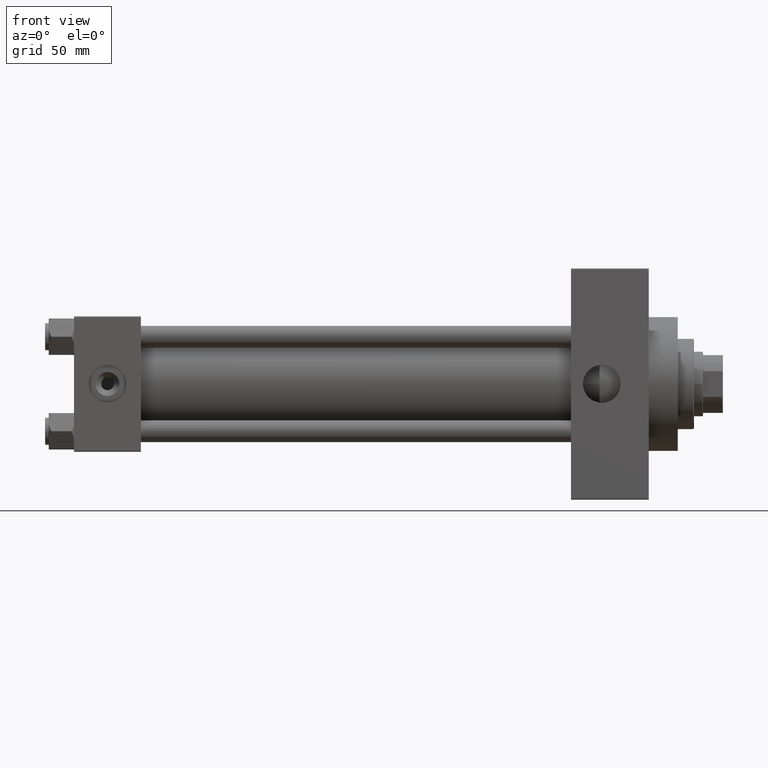
[diagram: clean part render]
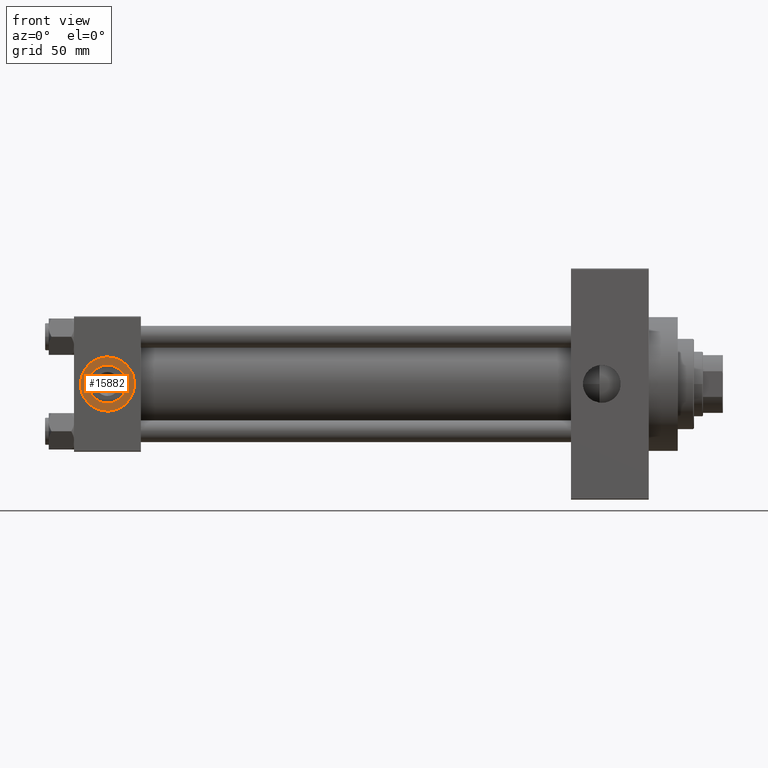
[diagram: same view with one face highlighted and labeled with its STEP entity id]
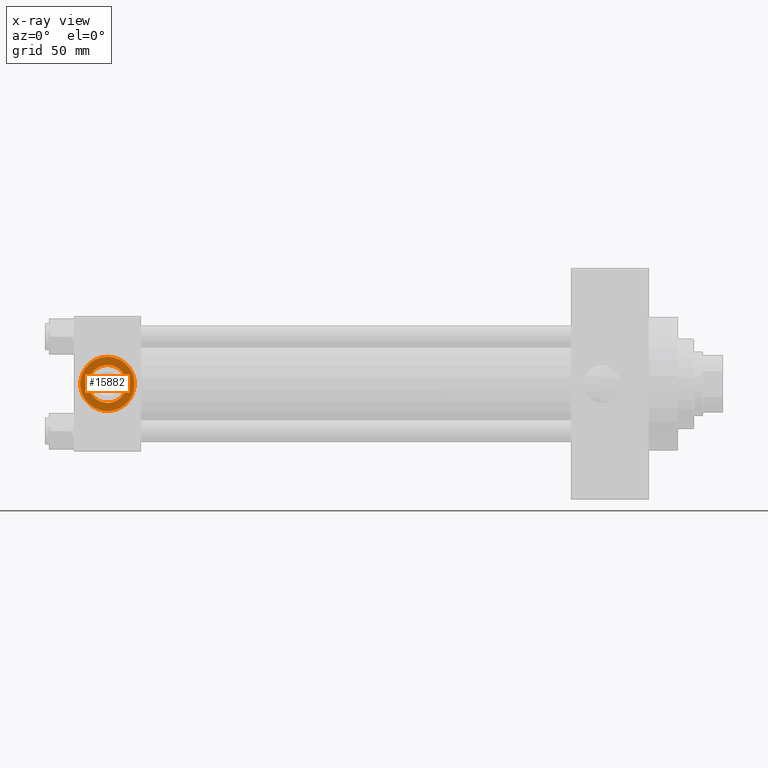
[diagram: x-ray of the same camera — body ghosted, the highlighted face saturated]
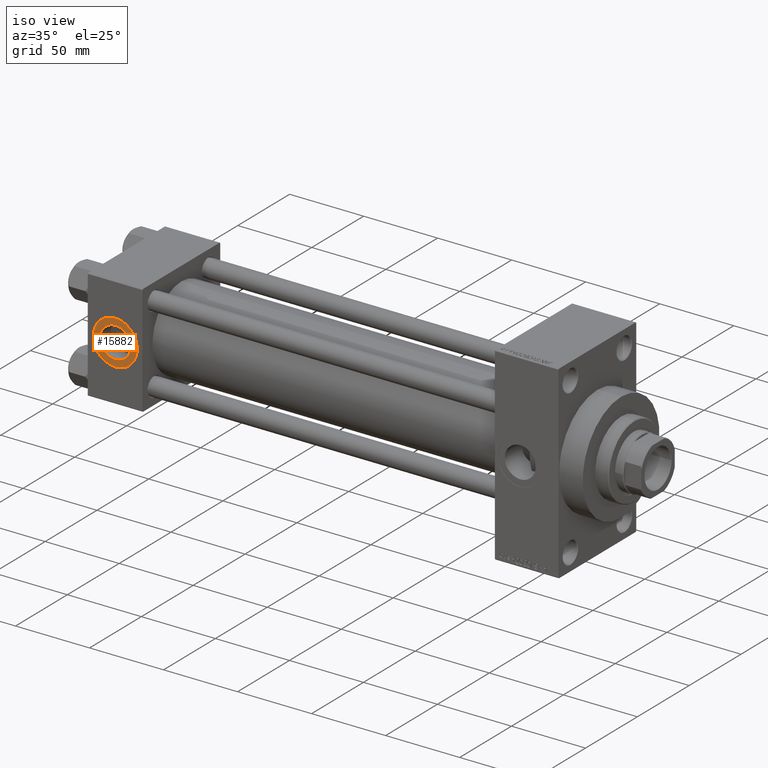
[diagram: same view with one face highlighted and labeled with its STEP entity id]
A machine part, front view. The second image highlights one B-rep face of the part: STEP entity #15882.
The next image is the same camera in x-ray: the body ghosted, the highlighted face saturated — about 0% of this face is hidden behind the body in this view.
A second angle (iso view) of the same face is appended — the face is thin or edge-on in the first view.
In plain terms, the highlighted planar face has unit normal (0, -1, -0).
Its self-contained STEP definition (entity closure, byte-faithful):
#325 = AXIS2_PLACEMENT_3D ( 'NONE', #42826, #11938, #34344 ) ;
#1508 = CARTESIAN_POINT ( 'NONE',  ( 18.50000000000000355, -37.30000000000000426, 14.99999999999999822 ) ) ;
#1928 = CIRCLE ( 'NONE', #325, 10.48000000000000043 ) ;
#2330 = EDGE_LOOP ( 'NONE', ( #24407, #2623 ) ) ;
#2623 = ORIENTED_EDGE ( 'NONE', *, *, #13398, .T. ) ;
#4382 = CIRCLE ( 'NONE', #32241, 15.00000000000000178 ) ;
#6441 = VERTEX_POINT ( 'NONE', #34478 ) ;
#6681 = DIRECTION ( 'NONE',  ( 0.000000000000000000, 8.673617379884036705E-17, -1.000000000000000000 ) ) ;
#7559 = DIRECTION ( 'NONE',  ( 0.000000000000000000, -1.000000000000000000, -8.673617379884036705E-17 ) ) ;
#10109 = ORIENTED_EDGE ( 'NONE', *, *, #10964, .F. ) ;
#10668 = CARTESIAN_POINT ( 'NONE',  ( 18.50000000000000000, -37.30000000000000426, -3.452099717193846907E-15 ) ) ;
#10813 = DIRECTION ( 'NONE',  ( 0.000000000000000000, 0.000000000000000000, -1.000000000000000000 ) ) ;
#10964 = EDGE_CURVE ( 'NONE', #6441, #21730, #1928, .T. ) ;
#11864 = EDGE_LOOP ( 'NONE', ( #30945, #10109 ) ) ;
#11938 = DIRECTION ( 'NONE',  ( 0.000000000000000000, -1.000000000000000000, -8.673617379884036705E-17 ) ) ;
#12254 = CIRCLE ( 'NONE', #16230, 10.48000000000000043 ) ;
#13398 = EDGE_CURVE ( 'NONE', #20995, #25376, #4382, .T. ) ;
#15882 = ADVANCED_FACE ( 'NONE', ( #26125, #37073 ), #33813, .T. ) ;
#16230 = AXIS2_PLACEMENT_3D ( 'NONE', #21519, #37358, #31732 ) ;
#20995 = VERTEX_POINT ( 'NONE', #1508 ) ;
#21519 = CARTESIAN_POINT ( 'NONE',  ( 18.50000000000000000, -37.30000000000000426, -3.452099717193846907E-15 ) ) ;
#21730 = VERTEX_POINT ( 'NONE', #26965 ) ;
#22768 = CARTESIAN_POINT ( 'NONE',  ( 18.50000000000000000, -37.30000000000000426, -3.452099717193846907E-15 ) ) ;
#24407 = ORIENTED_EDGE ( 'NONE', *, *, #40917, .T. ) ;
#25376 = VERTEX_POINT ( 'NONE', #30098 ) ;
#26125 = FACE_BOUND ( 'NONE', #11864, .T. ) ;
#26965 = CARTESIAN_POINT ( 'NONE',  ( 18.50000000000000000, -37.30000000000000426, -10.48000000000000398 ) ) ;
#30098 = CARTESIAN_POINT ( 'NONE',  ( 18.50000000000000000, -37.30000000000000426, -15.00000000000000533 ) ) ;
#30945 = ORIENTED_EDGE ( 'NONE', *, *, #31588, .F. ) ;
#31588 = EDGE_CURVE ( 'NONE', #21730, #6441, #12254, .T. ) ;
#31732 = DIRECTION ( 'NONE',  ( 0.000000000000000000, 0.000000000000000000, -1.000000000000000000 ) ) ;
#32241 = AXIS2_PLACEMENT_3D ( 'NONE', #22768, #7559, #10813 ) ;
#33813 = PLANE ( 'NONE',  #36951 ) ;
#34344 = DIRECTION ( 'NONE',  ( 0.000000000000000000, 0.000000000000000000, -1.000000000000000000 ) ) ;
#34478 = CARTESIAN_POINT ( 'NONE',  ( 18.50000000000000000, -37.30000000000000426, 10.47999999999999687 ) ) ;
#36307 = AXIS2_PLACEMENT_3D ( 'NONE', #38869, #45606, #46602 ) ;
#36951 = AXIS2_PLACEMENT_3D ( 'NONE', #10668, #49023, #6681 ) ;
#37073 = FACE_OUTER_BOUND ( 'NONE', #2330, .T. ) ;
#37358 = DIRECTION ( 'NONE',  ( 0.000000000000000000, -1.000000000000000000, -8.673617379884036705E-17 ) ) ;
#38869 = CARTESIAN_POINT ( 'NONE',  ( 18.50000000000000000, -37.30000000000000426, -3.452099717193846907E-15 ) ) ;
#40917 = EDGE_CURVE ( 'NONE', #25376, #20995, #42691, .T. ) ;
#42691 = CIRCLE ( 'NONE', #36307, 15.00000000000000178 ) ;
#42826 = CARTESIAN_POINT ( 'NONE',  ( 18.50000000000000000, -37.30000000000000426, -3.452099717193846907E-15 ) ) ;
#45606 = DIRECTION ( 'NONE',  ( 0.000000000000000000, -1.000000000000000000, -8.673617379884036705E-17 ) ) ;
#46602 = DIRECTION ( 'NONE',  ( 0.000000000000000000, 0.000000000000000000, -1.000000000000000000 ) ) ;
#49023 = DIRECTION ( 'NONE',  ( 0.000000000000000000, -1.000000000000000000, -8.673617379884036705E-17 ) ) ;